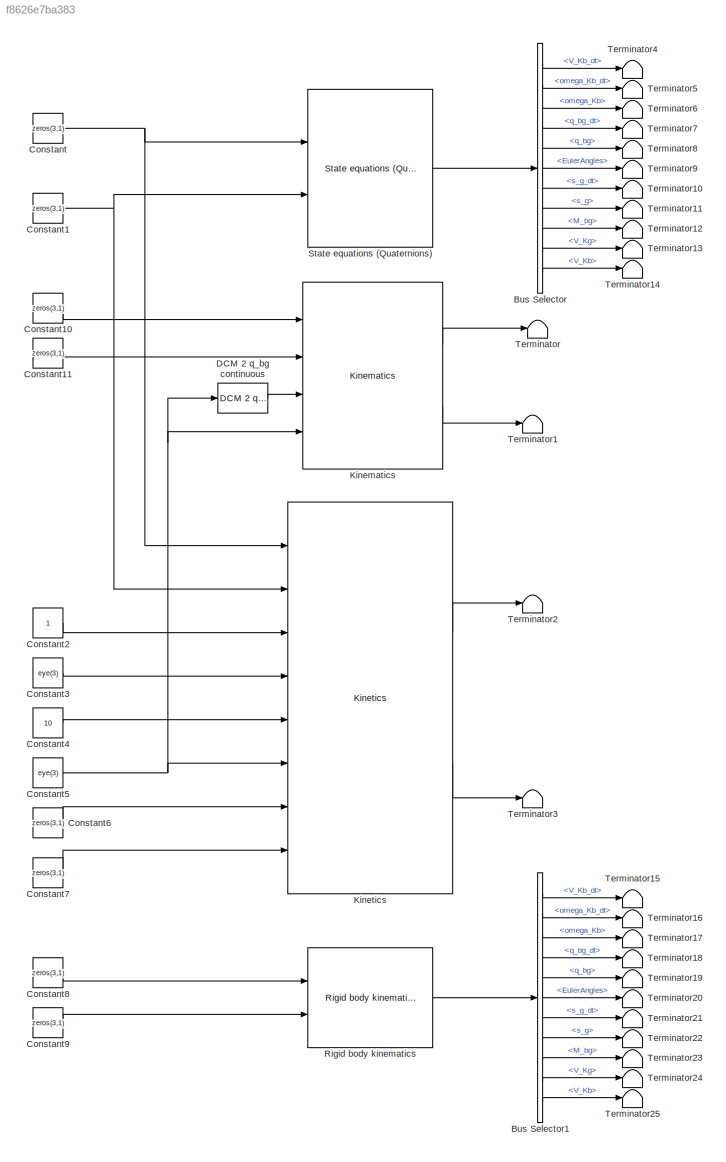
MODEL slx_f8626e7ba383
KIND model
CONFIG AbsTol = auto
CONFIG EnableMultiTasking = off
CONFIG FixedStep = auto
CONFIG MaxStep = auto
CONFIG MinStep = auto
CONFIG RelTol = 1e-3
CONFIG SampleTimeConstraint = Unconstrained
CONFIG Solver = VariableStepAuto
CONFIG SolverName = VariableStepAuto
CONFIG StartTime = 0.0
CONFIG StopTime = 10.0
BLOCK [BusSelector] Bus Selector
  OutputAsBus = off
  OutputSignals = V_Kb_dt,omega_Kb_dt,omega_Kb,q_bg_dt,q_bg,EulerAngles,s_g_dt,s_g,M_bg,V_Kg,V_Kb
  Ports = [1, 11]
BLOCK [BusSelector] Bus Selector1
  OutputAsBus = off
  OutputSignals = V_Kb_dt,omega_Kb_dt,omega_Kb,q_bg_dt,q_bg,EulerAngles,s_g_dt,s_g,M_bg,V_Kg,V_Kb
  Ports = [1, 11]
BLOCK [Constant] Constant
  Value = zeros(3,1)
BLOCK [Constant] Constant1
  Value = zeros(3,1)
BLOCK [Constant] Constant10
  Value = zeros(3,1)
BLOCK [Constant] Constant11
  Value = zeros(3,1)
BLOCK [Constant] Constant2
BLOCK [Constant] Constant3
  Value = eye(3)
BLOCK [Constant] Constant4
  Value = 10
BLOCK [Constant] Constant5
  Value = eye(3)
BLOCK [Constant] Constant6
  Value = zeros(3,1)
BLOCK [Constant] Constant7
  Value = zeros(3,1)
BLOCK [Constant] Constant8
  Value = zeros(3,1)
BLOCK [Constant] Constant9
  Value = zeros(3,1)
BLOCK [Reference] DCM 2 q_bg continuous  REF=axes_transformation_lib/DCM 2 q_bg continuous  (lib defined in slx_69e2413c78c0)
  Ports = [1, 1]
  SourceBlock = axes_transformation_lib/DCM 2 q_bg continuous
  SourceProductName = LADAC
BLOCK [Reference] Kinematics  REF=rigidBody_lib/Kinematics
  Ports = [4, 2]
  SourceBlock = rigidBody_lib/Kinematics
  SourceProductName = LADAC
BLOCK [Reference] Kinetics  REF=rigidBody_lib/Kinetics
  Ports = [8, 2]
  SourceBlock = rigidBody_lib/Kinetics
  SourceProductName = LADAC
BLOCK [Reference] Rigid body kinematics  REF=rigidBody_lib/Rigid body kinematics
  Ports = [2, 1]
  SourceBlock = rigidBody_lib/Rigid body kinematics
  SourceProductName = LADAC
BLOCK [Reference] State equations (Quaternions)  REF=rigidBody_lib/State equations
(Quaternions)
  Ports = [2, 1]
  SourceBlock = rigidBody_lib/State equations\n(Quaternions)
  SourceProductName = LADAC
BLOCK [Terminator] Terminator
BLOCK [Terminator] Terminator1
BLOCK [Terminator] Terminator10
BLOCK [Terminator] Terminator11
BLOCK [Terminator] Terminator12
BLOCK [Terminator] Terminator13
BLOCK [Terminator] Terminator14
BLOCK [Terminator] Terminator15
BLOCK [Terminator] Terminator16
BLOCK [Terminator] Terminator17
BLOCK [Terminator] Terminator18
BLOCK [Terminator] Terminator19
BLOCK [Terminator] Terminator2
BLOCK [Terminator] Terminator20
BLOCK [Terminator] Terminator21
BLOCK [Terminator] Terminator22
BLOCK [Terminator] Terminator23
BLOCK [Terminator] Terminator24
BLOCK [Terminator] Terminator25
BLOCK [Terminator] Terminator3
BLOCK [Terminator] Terminator4
BLOCK [Terminator] Terminator5
BLOCK [Terminator] Terminator6
BLOCK [Terminator] Terminator7
BLOCK [Terminator] Terminator8
BLOCK [Terminator] Terminator9
LINE Bus Selector1:1 -> Terminator15:1
LINE Bus Selector1:10 -> Terminator24:1
LINE Bus Selector1:11 -> Terminator25:1
LINE Bus Selector1:2 -> Terminator16:1
LINE Bus Selector1:3 -> Terminator17:1
LINE Bus Selector1:4 -> Terminator18:1
LINE Bus Selector1:5 -> Terminator19:1
LINE Bus Selector1:6 -> Terminator20:1
LINE Bus Selector1:7 -> Terminator21:1
LINE Bus Selector1:8 -> Terminator22:1
LINE Bus Selector1:9 -> Terminator23:1
LINE Bus Selector:1 -> Terminator4:1
LINE Bus Selector:10 -> Terminator13:1
LINE Bus Selector:11 -> Terminator14:1
LINE Bus Selector:2 -> Terminator5:1
LINE Bus Selector:3 -> Terminator6:1
LINE Bus Selector:4 -> Terminator7:1
LINE Bus Selector:5 -> Terminator8:1
LINE Bus Selector:6 -> Terminator9:1
LINE Bus Selector:7 -> Terminator10:1
LINE Bus Selector:8 -> Terminator11:1
LINE Bus Selector:9 -> Terminator12:1
LINE Constant10:1 -> Kinematics:1
LINE Constant11:1 -> Kinematics:2
NET Constant1:1 -> Kinetics:2, State equations (Quaternions):2
LINE Constant2:1 -> Kinetics:3
LINE Constant3:1 -> Kinetics:4
LINE Constant4:1 -> Kinetics:5
NET Constant5:1 -> DCM 2 q_bg continuous:1, Kinematics:4, Kinetics:6
LINE Constant6:1 -> Kinetics:7
LINE Constant7:1 -> Kinetics:8
LINE Constant8:1 -> Rigid body kinematics:1
LINE Constant9:1 -> Rigid body kinematics:2
NET Constant:1 -> Kinetics:1, State equations (Quaternions):1
LINE DCM 2 q_bg continuous:1 -> Kinematics:3
LINE Kinematics:1 -> Terminator:1
LINE Kinematics:2 -> Terminator1:1
LINE Kinetics:1 -> Terminator2:1
LINE Kinetics:2 -> Terminator3:1
LINE Rigid body kinematics:1 -> Bus Selector1:1
LINE State equations (Quaternions):1 -> Bus Selector:1
note: NET lines group one-source signal fan-out (src -> all destinations, sorted); 1:1 wires keep LINE
